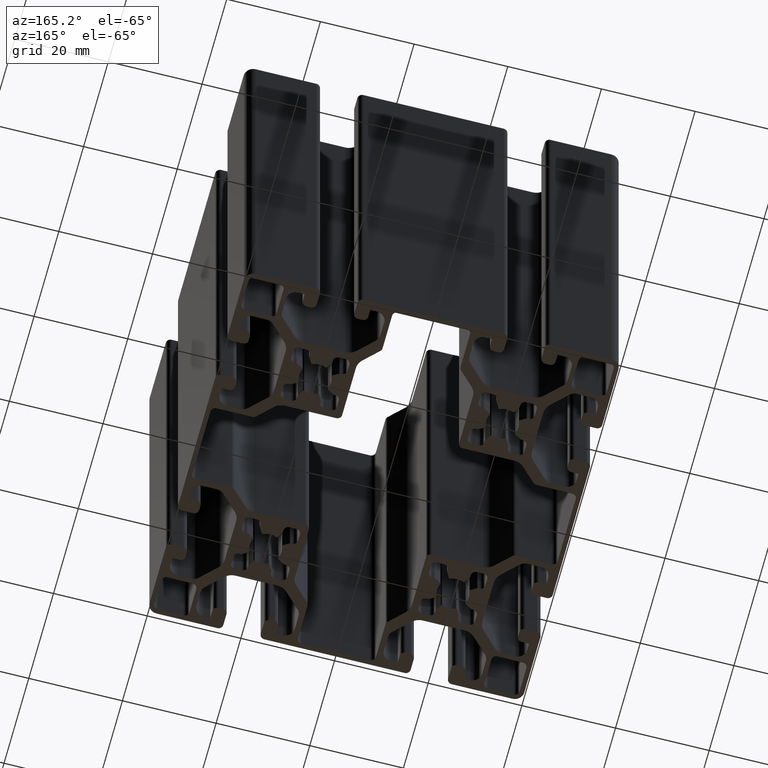
[diagram: clean part render]
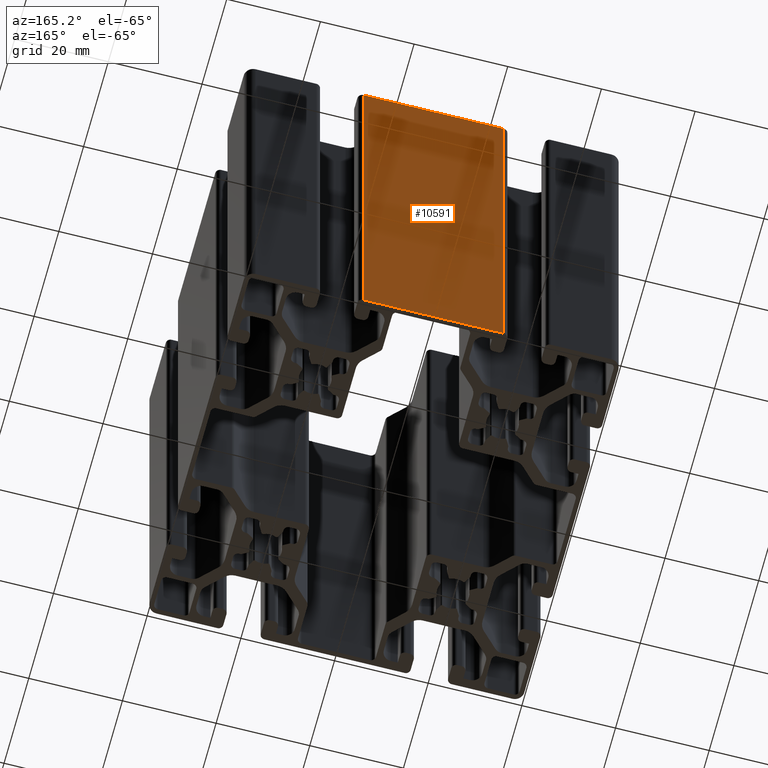
[diagram: same view with one face highlighted and labeled with its STEP entity id]
A machine part, auxiliary view. The second image highlights one B-rep face of the part: STEP entity #10591.
In plain terms, the highlighted planar face has unit normal (0, 1, 0).
Its self-contained STEP definition (entity closure, byte-faithful):
#1367=FACE_OUTER_BOUND('',#1897,.T.);
#1897=EDGE_LOOP('',(#8719,#8720,#8721,#8722));
#2119=LINE('',#15444,#3159);
#2374=LINE('',#16192,#3414);
#2951=LINE('',#17997,#3991);
#2952=LINE('',#17998,#3992);
#3159=VECTOR('',#12249,100.);
#3414=VECTOR('',#12982,100.);
#3991=VECTOR('',#14815,30.);
#3992=VECTOR('',#14816,30.);
#4199=VERTEX_POINT('',#15441);
#4200=VERTEX_POINT('',#15443);
#4453=VERTEX_POINT('',#16188);
#4454=VERTEX_POINT('',#16190);
#5348=EDGE_CURVE('',#4199,#4200,#2119,.T.);
#5720=EDGE_CURVE('',#4453,#4454,#2374,.T.);
#6623=EDGE_CURVE('',#4199,#4453,#2951,.T.);
#6624=EDGE_CURVE('',#4200,#4454,#2952,.T.);
#8719=ORIENTED_EDGE('',*,*,#5348,.F.);
#8720=ORIENTED_EDGE('',*,*,#6623,.T.);
#8721=ORIENTED_EDGE('',*,*,#5720,.T.);
#8722=ORIENTED_EDGE('',*,*,#6624,.F.);
#10065=PLANE('',#11659);
#10591=ADVANCED_FACE('',(#1367),#10065,.T.);
#11659=AXIS2_PLACEMENT_3D('',#17996,#14813,#14814);
#12249=DIRECTION('',(0.,0.,-1.));
#12982=DIRECTION('',(0.,0.,-1.));
#14813=DIRECTION('center_axis',(0.,1.,0.));
#14814=DIRECTION('ref_axis',(-1.,0.,0.));
#14815=DIRECTION('',(1.,0.,0.));
#14816=DIRECTION('',(1.,0.,0.));
#15441=CARTESIAN_POINT('',(-15.,39.9999999999999,100.));
#15443=CARTESIAN_POINT('',(-15.,39.9999999999999,0.));
#15444=CARTESIAN_POINT('',(-15.,40.,0.));
#16188=CARTESIAN_POINT('',(15.,39.9999999999999,100.));
#16190=CARTESIAN_POINT('',(15.,39.9999999999999,0.));
#16192=CARTESIAN_POINT('',(15.,40.,0.));
#17996=CARTESIAN_POINT('Origin',(38.,40.,0.));
#17997=CARTESIAN_POINT('',(19.,40.,100.));
#17998=CARTESIAN_POINT('',(19.,40.,0.));